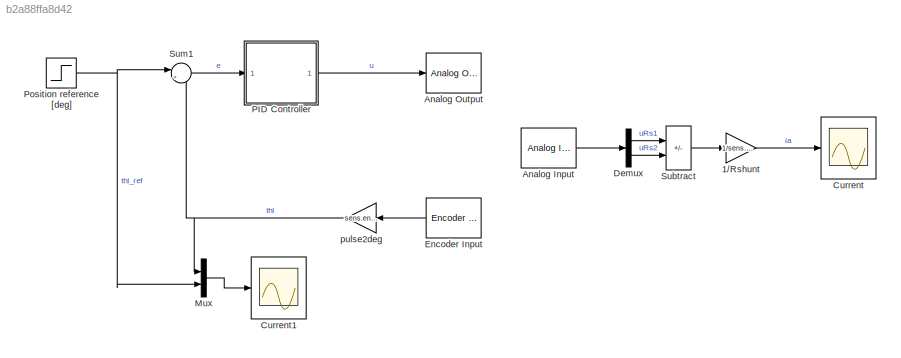
MODEL slx_b2a88ffa8d42
KIND model
CONFIG AbsTol = auto
CONFIG EnableMultiTasking = off
CONFIG FixedStep = 0.001
CONFIG MaxStep = auto
CONFIG MinStep = auto
CONFIG RelTol = 1e-3
CONFIG SampleTimeConstraint = Unconstrained
CONFIG SolverName = ode3
CONFIG StartTime = 0.0
CONFIG StopTime = 5
BLOCK [Gain] 1//Rshunt
  Gain = 1/sens.curr.Rs
BLOCK [Reference] Analog Input  REF=sldrtlib/Analog Input
  AttributesFormatString = National Instruments\nPCI-6221 [auto]
  Ports = [0, 1]
  SourceBlock = sldrtlib/Analog Input
  SourceProductBaseCode = WT
  SourceType = Simulink Desktop Real-Time Analog Input
BLOCK [Reference] Analog Output  REF=sldrtlib/Analog Output
  AttributesFormatString = National Instruments\nPCI-6221 [auto]
  Ports = [1]
  SourceBlock = sldrtlib/Analog Output
  SourceProductBaseCode = WT
  SourceType = Simulink Desktop Real-Time Analog Output
BLOCK [Scope] Current
  Floating = off
  NumInputPorts = 1
  Ports = [1]
  ScopeSpecificationString = Simulink.scopes.TimeScopeBlockCfg('CurrentConfiguration', extmgr.ConfigurationSet(extmgr.Configuration('Core','General UI',true),extmgr.Configuration('Core','Source UI',true),extmgr.Configuration('Sources','WiredSimulink',true,'DataLoggingVariableName','MotorData','DataLogging',true,'DataLoggingSaveFormat','StructureWithTime'),extmgr.Configuration('Visuals','Time Domain',true,'SerializedDisplays',...<+1423ch>
BLOCK [Scope] Current1
  Floating = off
  NumInputPorts = 1
  Ports = [1]
  ScopeSpecificationString = Simulink.scopes.TimeScopeBlockCfg('CurrentConfiguration', extmgr.ConfigurationSet(extmgr.Configuration('Core','General UI',true),extmgr.Configuration('Core','Source UI',true),extmgr.Configuration('Sources','WiredSimulink',true,'DataLoggingVariableName','real_angle','DataLogging',true,'DataLoggingSaveFormat','StructureWithTime'),extmgr.Configuration('Visuals','Time Domain',true,'SerializedDisplays'...<+1465ch>
BLOCK [Demux] Demux
  Outputs = 2
  Ports = [1, 2]
BLOCK [Reference] Encoder Input  REF=sldrtlib/Encoder Input
  AttributesFormatString = National Instruments\nPCI-6221 [auto]
  Ports = [0, 1]
  SourceBlock = sldrtlib/Encoder Input
  SourceProductBaseCode = WT
  SourceType = Simulink Desktop Real-Time Encoder Input
BLOCK [Mux] Mux
  DisplayOption = bar
  Inputs = 2
  Ports = [2, 1]
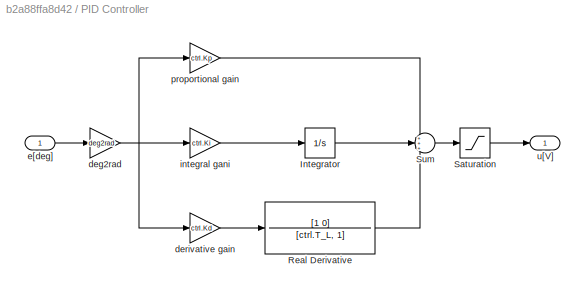
BLOCK [SubSystem] PID Controller
  Ports = [1, 1]
  RequestExecContextInheritance = off
BLOCK [Integrator] PID Controller/Integrator
  Ports = [1, 1]
BLOCK [TransferFcn] PID Controller/Real Derivative
  Denominator = [ctrl.T_L, 1]
  Numerator = [1 0]
BLOCK [Saturate] PID Controller/Saturation
  LowerLimit = -drv.outmax
  UpperLimit = drv.outmax
BLOCK [Sum] PID Controller/Sum
  Inputs = +++
  Ports = [3, 1]
BLOCK [Gain] PID Controller/deg2rad
  Gain = deg2rad
BLOCK [Gain] PID Controller/derivative gain
  Gain = ctrl.Kd
BLOCK [Inport] PID Controller/e[deg]
BLOCK [Gain] PID Controller/integral gani
  Gain = ctrl.Ki
BLOCK [Gain] PID Controller/proportional gain
  Gain = ctrl.Kp
BLOCK [Outport] PID Controller/u[V]
BLOCK [Step] Position reference [deg]
  After = step_size
  SampleTime = 0
BLOCK [Sum] Subtract
  IconShape = rectangular
  Inputs = +-
  Ports = [2, 1]
BLOCK [Sum] Sum1
  Inputs = |+-
  Ports = [2, 1]
BLOCK [Gain] pulse2deg
  Gain = sens.enc.pulse2deg
LINE 1//Rshunt:1 -> Current:1
LINE Analog Input:1 -> Demux:1
LINE Demux:1 -> Subtract:1
LINE Demux:2 -> Subtract:2
LINE Encoder Input:1 -> pulse2deg:1
LINE Mux:1 -> Current1:1
LINE PID Controller/Integrator:1 -> PID Controller/Sum:2
LINE PID Controller/Real Derivative:1 -> PID Controller/Sum:3
LINE PID Controller/Saturation:1 -> PID Controller/u[V]:1
LINE PID Controller/Sum:1 -> PID Controller/Saturation:1
NET PID Controller/deg2rad:1 -> PID Controller/derivative gain:1, PID Controller/integral gani:1, PID Controller/proportional gain:1
LINE PID Controller/derivative gain:1 -> PID Controller/Real Derivative:1
LINE PID Controller/e[deg]:1 -> PID Controller/deg2rad:1
LINE PID Controller/integral gani:1 -> PID Controller/Integrator:1
LINE PID Controller/proportional gain:1 -> PID Controller/Sum:1
LINE PID Controller:1 -> Analog Output:1
NET Position reference [deg]:1 -> Mux:2, Sum1:1
LINE Subtract:1 -> 1//Rshunt:1
LINE Sum1:1 -> PID Controller:1
NET pulse2deg:1 -> Mux:1, Sum1:2
note: NET lines group one-source signal fan-out (src -> all destinations, sorted); 1:1 wires keep LINE
